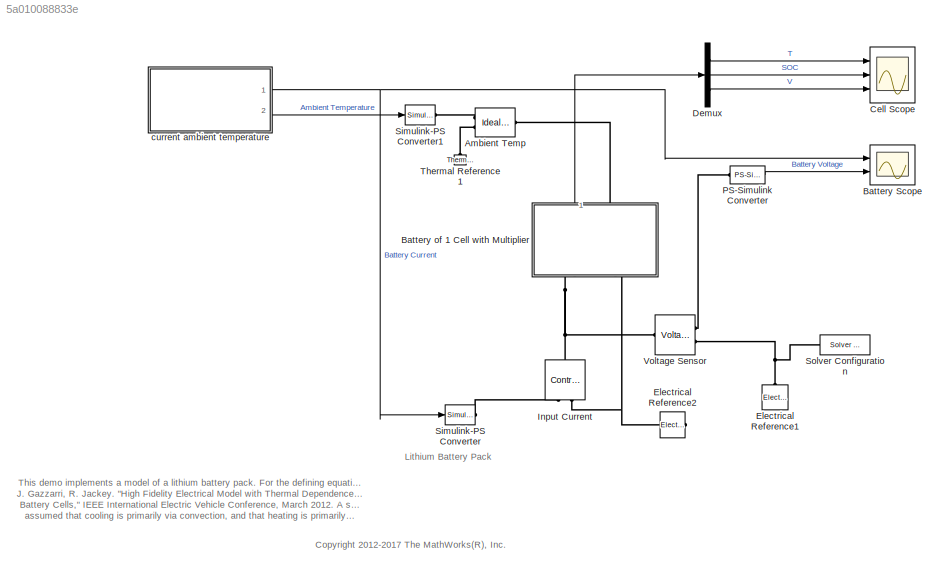
MODEL slx_5a010088833e
KIND model
CONFIG AbsTol = auto
CONFIG EnableMultiTasking = on
CONFIG FixedStep = auto
CONFIG MaxStep = 600
CONFIG MinStep = auto
CONFIG PreLoadFcn = ssc_lithium_battery_80Cells_ini\n
CONFIG RelTol = 1e-3
CONFIG SampleTimeConstraint = Unconstrained
CONFIG Solver = ode15s
CONFIG SolverName = ode15s
CONFIG StartTime = 0.0
CONFIG StopTime = 40000
BLOCK [Reference] Ambient Temp  REF=fl_lib/Thermal/Thermal Sources/Ideal Temperature
Source
  Ports = [0, 0, 0, 0, 0, 1, 2]
  SourceBlock = fl_lib/Thermal/Thermal Sources/Ideal Temperature\nSource
  SourceProductBaseCode = SS
  SourceProductName = Simscape
  SourceType = Ideal Temperature\nSource
BLOCK [Scope] Battery Scope
  NumInputPorts = 2
  Ports = [2]
  ScopeSpecificationString = Simulink.scopes.TimeScopeBlockCfg('CurrentConfiguration', extmgr.ConfigurationSet(extmgr.Configuration('Core','General UI',true),extmgr.Configuration('Core','Source UI',true),extmgr.Configuration('Sources','WiredSimulink',true,'DataLoggingVariableName','ScopeData1','DataLoggingSaveFormat','StructureWithTime','DataLoggingDecimation','1','DataLoggingDecimateData',true),extmgr.Configuration('Visuals'...<+2412ch>
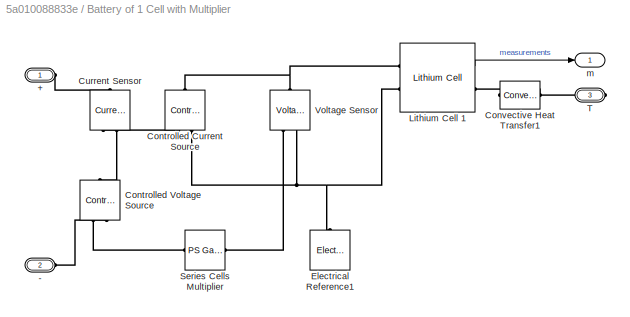
BLOCK [SubSystem] Battery of 1 Cell with Multiplier
  Ports = [0, 1, 0, 0, 0, 2, 1]
  RequestExecContextInheritance = off
  Variant = off
BLOCK [PMIOPort] Battery of 1 Cell with Multiplier/+
  Port = 1
  Side = Left
BLOCK [PMIOPort] Battery of 1 Cell with Multiplier/-
  Port = 2
  Side = Left
BLOCK [Reference] Battery of 1 Cell with Multiplier/Controlled Current Source  REF=fl_lib/Electrical/Electrical Sources/Controlled Current
Source
  Ports = [0, 0, 0, 0, 0, 1, 2]
  SourceBlock = fl_lib/Electrical/Electrical Sources/Controlled Current\nSource
  SourceProductBaseCode = SS
  SourceProductName = Simscape
  SourceType = Controlled Current\nSource
BLOCK [Reference] Battery of 1 Cell with Multiplier/Controlled Voltage Source  REF=fl_lib/Electrical/Electrical Sources/Controlled Voltage
Source
  Ports = [0, 0, 0, 0, 0, 1, 2]
  SourceBlock = fl_lib/Electrical/Electrical Sources/Controlled Voltage\nSource
  SourceProductBaseCode = SS
  SourceProductName = Simscape
  SourceType = Controlled Voltage\nSource
BLOCK [Reference] Battery of 1 Cell with Multiplier/Convective Heat Transfer1  REF=fl_lib/Thermal/Thermal Elements/Convective Heat
Transfer
  Ports = [0, 0, 0, 0, 0, 1, 1]
  SourceBlock = fl_lib/Thermal/Thermal Elements/Convective Heat\nTransfer
  SourceProductBaseCode = SS
  SourceProductName = Simscape
  SourceType = Convective Heat\nTransfer
BLOCK [Reference] Battery of 1 Cell with Multiplier/Current Sensor  REF=fl_lib/Electrical/Electrical Sensors/Current Sensor
  Ports = [0, 0, 0, 0, 0, 1, 2]
  SourceBlock = fl_lib/Electrical/Electrical Sensors/Current Sensor
  SourceProductBaseCode = SS
  SourceProductName = Simscape
  SourceType = Current Sensor
BLOCK [Reference] Battery of 1 Cell with Multiplier/Electrical Reference1  REF=fl_lib/Electrical/Electrical Elements/Electrical Reference
  Ports = [0, 0, 0, 0, 0, 1]
  SourceBlock = fl_lib/Electrical/Electrical Elements/Electrical Reference
  SourceProductBaseCode = SS
  SourceProductName = Simscape
  SourceType = Electrical Reference
BLOCK [Reference] Battery of 1 Cell with Multiplier/Lithium Cell 1  REF=LiBatteryBlocks/Lithium Cell
  AttributesFormatString = %<Battery>
  Ports = [0, 1, 0, 0, 0, 2, 1]
  SourceBlock = LiBatteryBlocks/Lithium Cell
  SourceType = Battery Cell
BLOCK [Reference] Battery of 1 Cell with Multiplier/Series Cells Multiplier  REF=fl_lib/Physical Signals/Functions/PS Gain
  Ports = [0, 0, 0, 0, 0, 1, 1]
  SourceBlock = fl_lib/Physical Signals/Functions/PS Gain
  SourceProductBaseCode = SS
  SourceProductName = Simscape
  SourceType = PS Gain
BLOCK [PMIOPort] Battery of 1 Cell with Multiplier/T
  Port = 3
  Side = Right
BLOCK [Reference] Battery of 1 Cell with Multiplier/Voltage Sensor  REF=fl_lib/Electrical/Electrical Sensors/Voltage Sensor
  Ports = [0, 0, 0, 0, 0, 1, 2]
  SourceBlock = fl_lib/Electrical/Electrical Sensors/Voltage Sensor
  SourceProductBaseCode = SS
  SourceProductName = Simscape
  SourceType = Voltage Sensor
BLOCK [Outport] Battery of 1 Cell with Multiplier/m
  IconDisplay = Port number
BLOCK [Scope] Cell Scope
  NumInputPorts = 3
  Ports = [3]
  ScopeSpecificationString = Simulink.scopes.TimeScopeBlockCfg('CurrentConfiguration', extmgr.ConfigurationSet(extmgr.Configuration('Core','General UI',true),extmgr.Configuration('Core','Source UI',true),extmgr.Configuration('Sources','WiredSimulink',true,'DataLoggingSaveFormat','StructureWithTime','DataLoggingDecimation','1','DataLoggingDecimateData',true),extmgr.Configuration('Visuals','Time Domain',true,'SerializedDisplays...<+3034ch>
BLOCK [Demux] Demux
  DisplayOption = bar
  Outputs = 3
  Ports = [1, 3]
BLOCK [Reference] Electrical Reference1  REF=fl_lib/Electrical/Electrical Elements/Electrical Reference
  Ports = [0, 0, 0, 0, 0, 1]
  SourceBlock = fl_lib/Electrical/Electrical Elements/Electrical Reference
  SourceProductBaseCode = SS
  SourceProductName = Simscape
  SourceType = Electrical Reference
BLOCK [Reference] Electrical Reference2  REF=fl_lib/Electrical/Electrical Elements/Electrical Reference
  Ports = [0, 0, 0, 0, 0, 1]
  SourceBlock = fl_lib/Electrical/Electrical Elements/Electrical Reference
  SourceProductBaseCode = SS
  SourceProductName = Simscape
  SourceType = Electrical Reference
BLOCK [Reference] Input Current  REF=fl_lib/Electrical/Electrical Sources/Controlled Current
Source
  Ports = [0, 0, 0, 0, 0, 1, 2]
  SourceBlock = fl_lib/Electrical/Electrical Sources/Controlled Current\nSource
  SourceProductBaseCode = SS
  SourceProductName = Simscape
  SourceType = Controlled Current\nSource
BLOCK [Reference] PS-Simulink Converter  REF=nesl_utility/PS-Simulink
Converter
  Ports = [0, 1, 0, 0, 0, 1]
  SourceBlock = nesl_utility/PS-Simulink\nConverter
  SourceProductBaseCode = SS
  SourceProductName = Simscape
  SourceType = PS-Simulink\nConverter
BLOCK [Reference] Simulink-PS Converter  REF=nesl_utility/Simulink-PS
Converter
  Ports = [1, 0, 0, 0, 0, 0, 1]
  SourceBlock = nesl_utility/Simulink-PS\nConverter
  SourceProductBaseCode = SS
  SourceProductName = Simscape
  SourceType = Simulink-PS\nConverter
BLOCK [Reference] Simulink-PS Converter1  REF=nesl_utility/Simulink-PS
Converter
  Ports = [1, 0, 0, 0, 0, 0, 1]
  SourceBlock = nesl_utility/Simulink-PS\nConverter
  SourceProductBaseCode = SS
  SourceProductName = Simscape
  SourceType = Simulink-PS\nConverter
BLOCK [Reference] Solver Configuration  REF=nesl_utility/Solver
Configuration
  Ports = [0, 0, 0, 0, 0, 0, 1]
  SourceBlock = nesl_utility/Solver\nConfiguration
  SourceProductBaseCode = SS
  SourceProductName = Simscape
  SourceType = Solver\nConfiguration
BLOCK [Reference] Thermal Reference1  REF=fl_lib/Thermal/Thermal Elements/Thermal Reference
  Ports = [0, 0, 0, 0, 0, 1]
  SourceBlock = fl_lib/Thermal/Thermal Elements/Thermal Reference
  SourceProductBaseCode = SS
  SourceProductName = Simscape
  SourceType = Thermal Reference
BLOCK [Reference] Voltage Sensor  REF=fl_lib/Electrical/Electrical Sensors/Voltage Sensor
  Ports = [0, 0, 0, 0, 0, 1, 2]
  SourceBlock = fl_lib/Electrical/Electrical Sensors/Voltage Sensor
  SourceProductBaseCode = SS
  SourceProductName = Simscape
  SourceType = Voltage Sensor
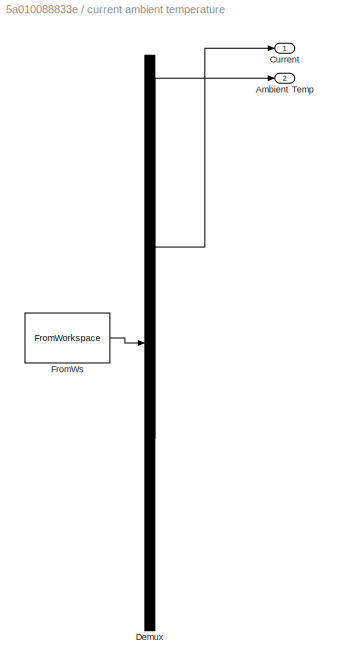
BLOCK [SubSystem] current ambient temperature
  ClipboardFcn = sigbuilder_block('clipboard');
  CloseFcn = sigbuilder_block('close');
  ContinueFcn = sigbuilder_block('continue');
  CopyFcn = sigbuilder_block('copy');
  DeleteFcn = sigbuilder_block('delete');
  LoadFcn = sigbuilder_block('load');
  MaskHideContents = on
  ModelCloseFcn = sigbuilder_block('modelClose');
  NameChangeFcn = sigbuilder_block('namechange');
  OpenFcn = sigbuilder_block('open',[28.8 123.6 754.8 399.6 ]);
  PauseFcn = sigbuilder_block('pause');
  Ports = [0, 2]
  PreSaveFcn = sigbuilder_block('preSave');
  RequestExecContextInheritance = off
  StartFcn = sigbuilder_block('start');
  StopFcn = sigbuilder_block('stop');
  Tag = STV Subsys
  Variant = off
BLOCK [Outport] current ambient temperature/Ambient Temp
  IconDisplay = Port number
  Port = 2
  Tag = STV Outport
BLOCK [Outport] current ambient temperature/Current
  IconDisplay = Port number
BLOCK [Demux] current ambient temperature/Demux
  Outputs = 2
  Ports = [1, 2]
  Tag = STV Demux
BLOCK [FromWorkspace] current ambient temperature/FromWs
  SampleTime = 0
  Tag = STV FromWs
  VariableName = tuvar
  ZeroCross = on
ANNOTATION (root): <copyright redacted>
ANNOTATION (root): Lithium Battery Pack
ANNOTATION (root): This demo implements a model of a lithium battery pack. For the defining equations of each cell and their validation, see T. Huria, M. Ceraolo, J. Gazzarri, R. Jackey. "High Fidelity Electrical Model with Thermal Dependence for Characterization and Simulation of High Power Lithium Battery Cells," IEEE International Electric Vehicle Conference, March 2012. A simple thermal model is used to model ba...<+130ch>
LINE Battery of 1 Cell with Multiplier/Lithium Cell 1:1 -> Battery of 1 Cell with Multiplier/m:1
LINE Battery of 1 Cell with Multiplier:1 -> Demux:1
LINE Demux:1 -> Cell Scope:1
LINE Demux:2 -> Cell Scope:2
LINE Demux:3 -> Cell Scope:3
LINE PS-Simulink Converter:1 -> Battery Scope:2
NET current ambient temperature:1 -> Battery Scope:1, Simulink-PS Converter:1
LINE current ambient temperature:2 -> Simulink-PS Converter1:1
PLINE Ambient Temp:LConn1 -- Battery of 1 Cell with Multiplier:RConn1
PLINE Ambient Temp:RConn1 -- Simulink-PS Converter1:RConn1
PLINE Ambient Temp:RConn2 -- Thermal Reference1:LConn1
PLINE Battery of 1 Cell with Multiplier/+:RConn1 -- Battery of 1 Cell with Multiplier/Current Sensor:LConn1
PLINE Battery of 1 Cell with Multiplier/-:RConn1 -- Battery of 1 Cell with Multiplier/Controlled Voltage Source:RConn2
PNET net1: Battery of 1 Cell with Multiplier/Controlled Current Source:LConn1 -- Battery of 1 Cell with Multiplier/Lithium Cell 1:LConn1 -- Battery of 1 Cell with Multiplier/Voltage Sensor:LConn1
PLINE Battery of 1 Cell with Multiplier/Controlled Current Source:RConn1 -- Battery of 1 Cell with Multiplier/Current Sensor:RConn1
PNET net2: Battery of 1 Cell with Multiplier/Controlled Current Source:RConn2 -- Battery of 1 Cell with Multiplier/Electrical Reference1:LConn1 -- Battery of 1 Cell with Multiplier/Lithium Cell 1:LConn2 -- Battery of 1 Cell with Multiplier/Voltage Sensor:RConn2
PLINE Battery of 1 Cell with Multiplier/Controlled Voltage Source:LConn1 -- Battery of 1 Cell with Multiplier/Current Sensor:RConn2
PLINE Battery of 1 Cell with Multiplier/Controlled Voltage Source:RConn1 -- Battery of 1 Cell with Multiplier/Series Cells Multiplier:RConn1
PLINE Battery of 1 Cell with Multiplier/Convective Heat Transfer1:LConn1 -- Battery of 1 Cell with Multiplier/T:RConn1
PLINE Battery of 1 Cell with Multiplier/Convective Heat Transfer1:RConn1 -- Battery of 1 Cell with Multiplier/Lithium Cell 1:RConn1
PLINE Battery of 1 Cell with Multiplier/Series Cells Multiplier:LConn1 -- Battery of 1 Cell with Multiplier/Voltage Sensor:RConn1
PNET net3: Battery of 1 Cell with Multiplier:LConn1 -- Input Current:LConn1 -- Voltage Sensor:LConn1
PNET net4: Battery of 1 Cell with Multiplier:LConn2 -- Electrical Reference2:LConn1 -- Input Current:RConn2
PNET net5: Electrical Reference1:LConn1 -- Solver Configuration:RConn1 -- Voltage Sensor:RConn2
PLINE Input Current:RConn1 -- Simulink-PS Converter:RConn1
PLINE PS-Simulink Converter:LConn1 -- Voltage Sensor:RConn1
note: NET lines group one-source signal fan-out (src -> all destinations, sorted); 1:1 wires keep LINE; PNET lines group multi-terminal physical nets as a canonical sorted terminal list (undirected conserving connections); 2-terminal nets keep the pairwise PLINE form
